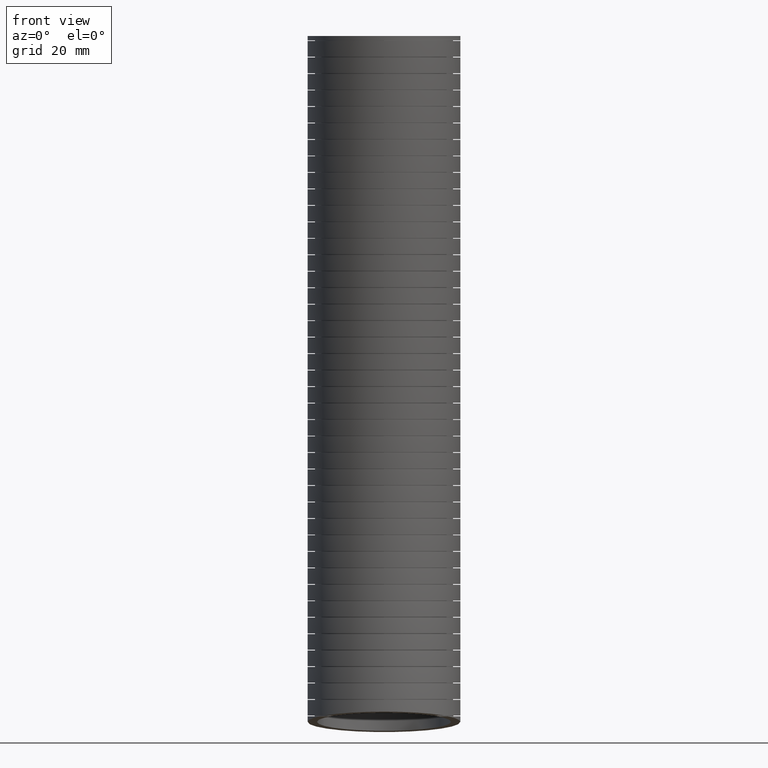
[diagram: clean part render]
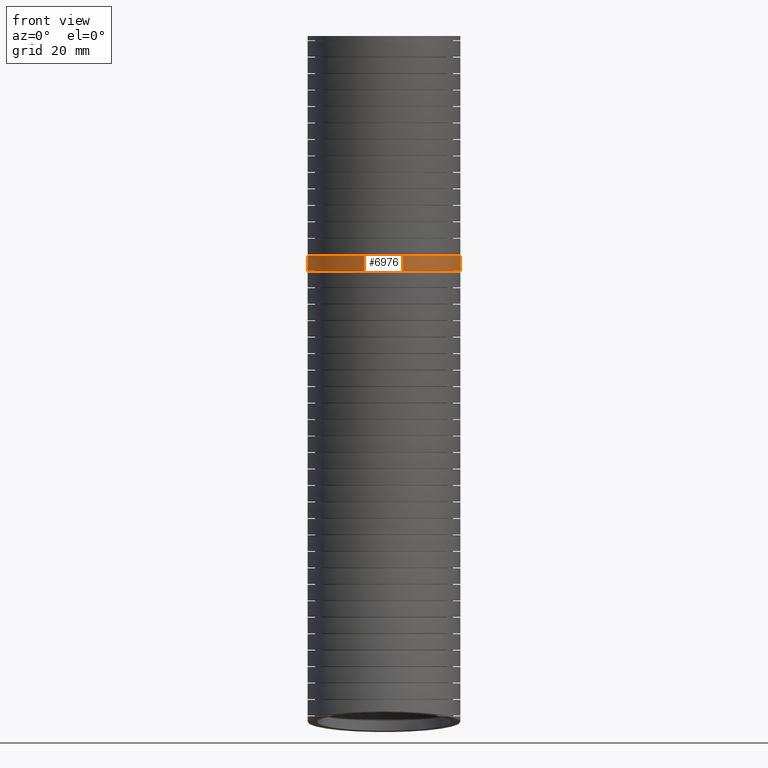
[diagram: same view with one face highlighted and labeled with its STEP entity id]
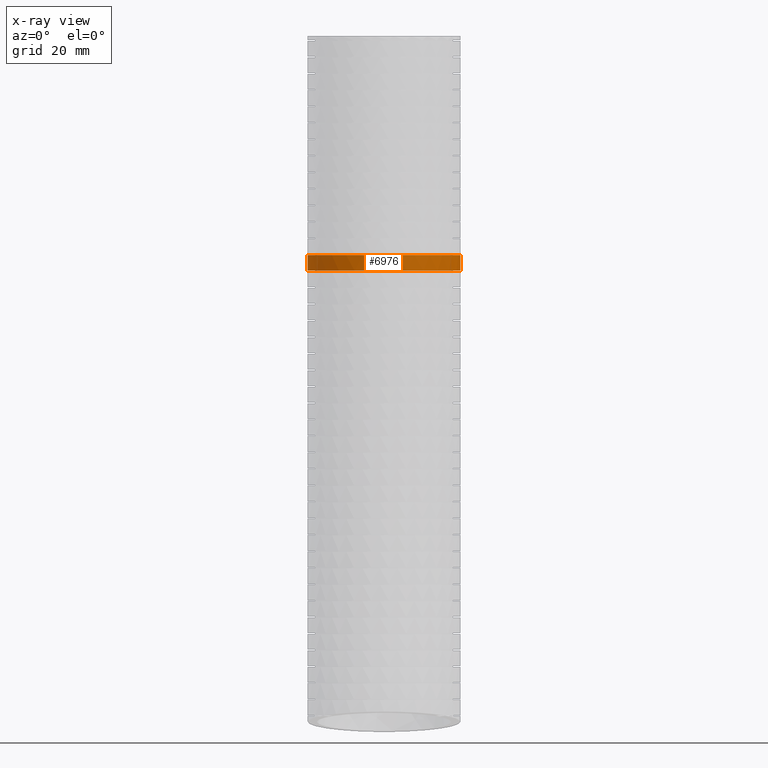
[diagram: x-ray of the same camera — body ghosted, the highlighted face saturated]
A machine part, front view. The second image highlights one B-rep face of the part: STEP entity #6976.
The next image is the same camera in x-ray: the body ghosted, the highlighted face saturated — about 0% of this face is hidden behind the body in this view.
In plain terms, the highlighted face is a freeform B-spline surface patch.
Its self-contained STEP definition (entity closure, byte-faithful):
#6972 = EDGE_CURVE ( 'NONE', #7023, #7018, #18457, .T. ) ;
#6975 = ORIENTED_EDGE ( 'NONE', *, *, #6972, .T. ) ;
#6976 = ADVANCED_FACE ( 'NONE', ( #18481 ), #18516, .T. ) ;
#6978 = EDGE_LOOP ( 'NONE', ( #6975, #7022, #7014, #7011 ) ) ;
#7008 = EDGE_CURVE ( 'NONE', #7021, #7016, #18837, .T. ) ;
#7009 = EDGE_CURVE ( 'NONE', #7023, #7016, #18852, .T. ) ;
#7011 = ORIENTED_EDGE ( 'NONE', *, *, #7009, .F. ) ;
#7014 = ORIENTED_EDGE ( 'NONE', *, *, #7008, .T. ) ;
#7016 = VERTEX_POINT ( 'NONE', #18887 ) ;
#7018 = VERTEX_POINT ( 'NONE', #18886 ) ;
#7020 = EDGE_CURVE ( 'NONE', #7018, #7021, #18884, .T. ) ;
#7021 = VERTEX_POINT ( 'NONE', #18883 ) ;
#7022 = ORIENTED_EDGE ( 'NONE', *, *, #7020, .T. ) ;
#7023 = VERTEX_POINT ( 'NONE', #18952 ) ;
#18424 = CARTESIAN_POINT ( 'NONE',  ( -0.1215402187118136600, -0.9374726244329305600, -3.057660407145619300 ) ) ;
#18425 = CARTESIAN_POINT ( 'NONE',  ( -0.06917328683823963100, -0.9426145128001252000, -3.057660407145618800 ) ) ;
#18426 = CARTESIAN_POINT ( 'NONE',  ( -0.03435415852077784000, -0.9442965165041593600, -3.057660407145620200 ) ) ;
#18427 = CARTESIAN_POINT ( 'NONE',  ( 0.06983493048084372900, -0.9442597822696459100, -3.057660407145620200 ) ) ;
#18428 = CARTESIAN_POINT ( 'NONE',  ( 0.1389391514837237700, -0.9375067263528257300, -3.057660407145623700 ) ) ;
#18429 = CARTESIAN_POINT ( 'NONE',  ( 0.2248633613621606500, -0.9204254354117539200, -3.057660407145622400 ) ) ;
#18430 = CARTESIAN_POINT ( 'NONE',  ( 0.2420621164282275000, -0.9165621818763084500, -3.057660407145620200 ) ) ;
#18431 = CARTESIAN_POINT ( 'NONE',  ( 0.2760565489949506900, -0.9080381195419338100, -3.057660407145620600 ) ) ;
#18432 = CARTESIAN_POINT ( 'NONE',  ( 0.2928877023411077800, -0.9033721813495996200, -3.057660407145619300 ) ) ;
#18433 = CARTESIAN_POINT ( 'NONE',  ( 0.3428917434729867900, -0.8881839763222046900, -3.057660407145620200 ) ) ;
#18434 = CARTESIAN_POINT ( 'NONE',  ( 0.4082609846545256500, -0.8647642642587589600, -3.057660407145615300 ) ) ;
#18435 = CARTESIAN_POINT ( 'NONE',  ( 0.4710597620224740700, -0.8350925346791043800, -3.057660407145620600 ) ) ;
#18436 = CARTESIAN_POINT ( 'NONE',  ( 0.5171801634737271900, -0.8104583366050328600, -3.057660407145620200 ) ) ;
#18437 = CARTESIAN_POINT ( 'NONE',  ( 0.5323902275820994200, -0.8018494997590095400, -3.057660407145617500 ) ) ;
#18438 = CARTESIAN_POINT ( 'NONE',  ( 0.5624774145357253100, -0.7838220287852873900, -3.057660407145617900 ) ) ;
#18439 = CARTESIAN_POINT ( 'NONE',  ( 0.5773643700682495900, -0.7743934740587443700, -3.057660407145622800 ) ) ;
#18440 = CARTESIAN_POINT ( 'NONE',  ( 0.6501404907607752900, -0.7257438975770367200, -3.057660407145623300 ) ) ;
#18441 = CARTESIAN_POINT ( 'NONE',  ( 0.7037688275457415500, -0.6816655099864871200, -3.057660407145621500 ) ) ;
#18442 = CARTESIAN_POINT ( 'NONE',  ( 0.7774834674047630400, -0.6079906580992375800, -3.057660407145620600 ) ) ;
#18443 = CARTESIAN_POINT ( 'NONE',  ( 0.8009256825925272800, -0.5821638197421116200, -3.057660407145620200 ) ) ;
#18444 = CARTESIAN_POINT ( 'NONE',  ( 0.8343404407094902100, -0.5414594360631651600, -3.057660407145620600 ) ) ;
#18445 = CARTESIAN_POINT ( 'NONE',  ( 0.8451681587004317200, -0.5275815469180339400, -3.057660407145622400 ) ) ;
#18446 = CARTESIAN_POINT ( 'NONE',  ( 0.8660033663272986800, -0.4994762338624898500, -3.057660407145622400 ) ) ;
#18447 = CARTESIAN_POINT ( 'NONE',  ( 0.8760408930163867700, -0.4852129433491188000, -3.057660407145620600 ) ) ;
#18448 = CARTESIAN_POINT ( 'NONE',  ( 0.9243580571259492100, -0.4128599000854779000, -3.057660407145620600 ) ) ;
#18449 = CARTESIAN_POINT ( 'NONE',  ( 0.9570797160753671300, -0.3516899852253488300, -3.057660407145620200 ) ) ;
#18450 = CARTESIAN_POINT ( 'NONE',  ( 0.9971838352326708500, -0.2549594130529019300, -3.057660407145619300 ) ) ;
#18451 = CARTESIAN_POINT ( 'NONE',  ( 1.009086723257010700, -0.2217052706119471700, -3.057660407145617900 ) ) ;
#18452 = CARTESIAN_POINT ( 'NONE',  ( 1.029365778342484800, -0.1547959874455602200, -3.057660407145618800 ) ) ;
#18453 = CARTESIAN_POINT ( 'NONE',  ( 1.037798973949914300, -0.1210507470612444500, -3.057660407145620600 ) ) ;
#18454 = CARTESIAN_POINT ( 'NONE',  ( 1.058093820336625500, -0.01896268789573408700, -3.057660407145620200 ) ) ;
#18455 = CARTESIAN_POINT ( 'NONE',  ( 1.065000000000000200, 0.05022407803049355700, -3.057660406953686600 ) ) ;
#18456 = CARTESIAN_POINT ( 'NONE',  ( 1.064999999999999900, 0.1205870087397783500, -3.057660406953686600 ) ) ;
#18457 = B_SPLINE_CURVE_WITH_KNOTS ( 'NONE', 3,
 ( #18456, #18455, #18454, #18453, #18452, #18451, #18450, #18449, #18448, #18447, #18446, #18445, #18444, #18443, #18442, #18441, #18440, #18439, #18438, #18437, #18436, #18435, #18434, #18433, #18432, #18431, #18430, #18429, #18428, #18427, #18426, #18425, #18424, #18509, #18508, #18507, #18506, #18505, #18504, #18503, #18502, #18501, #18500, #18499, #18498, #18497, #18496, #18495, #18494, #18493, #18492, #18491, #18490, #18489, #18488, #18487, #18486, #18485, #18484, #18483, #18482 ),
 .UNSPECIFIED., .F., .F.,
 ( 4, 2, 2, 2, 2, 2, 2, 2, 2, 2, 2, 1, 2, 2, 2, 2, 2, 2, 2, 2, 2, 2, 2, 2, 2, 2, 2, 2, 2, 2, 4 ),
 ( 0.0000000000000000000, 0.005285551659694028000, 0.007928327489541042000, 0.01057110331938805800, 0.01585665497908208400, 0.01717804289400559300, 0.01849943080892910200, 0.02114220663877611600, 0.02642775829847015700, 0.02774914621339367000, 0.02907053412831717800, 0.03171330995816420300, 0.03435608578801122700, 0.03567747370293473900, 0.03699886161785825200, 0.04228441327755231400, 0.04492718910739935300, 0.04624857702232286500, 0.04756996493724638400, 0.05285551659694044700, 0.05417690451186396600, 0.05549829242678748500, 0.05814106825663450900, 0.06342661991632858600, 0.06606939574617562400, 0.06871217157602266300, 0.07135494740586968700, 0.07399772323571672500, 0.07928327489541080200, 0.08192605072525784000, 0.08456882655510487800 ),
 .UNSPECIFIED. ) ;
#18481 = FACE_OUTER_BOUND ( 'NONE', #6978, .T. ) ;
#18482 = CARTESIAN_POINT ( 'NONE',  ( -1.064999999999999900, 0.1205870087512069300, -3.057660407145620600 ) ) ;
#18483 = CARTESIAN_POINT ( 'NONE',  ( -1.064999999999999700, 0.08583504205267954200, -3.057660407145620200 ) ) ;
#18484 = CARTESIAN_POINT ( 'NONE',  ( -1.063303004283072500, 0.05097530494169246600, -3.057660407145619300 ) ) ;
#18485 = CARTESIAN_POINT ( 'NONE',  ( -1.056399718513744800, -0.01896703259938519300, -3.057660407145620200 ) ) ;
#18486 = CARTESIAN_POINT ( 'NONE',  ( -1.051228778704043700, -0.05361499832369976500, -3.057660407145619300 ) ) ;
#18487 = CARTESIAN_POINT ( 'NONE',  ( -1.030812056628519000, -0.1559539742178250300, -3.057660407145620200 ) ) ;
#18488 = CARTESIAN_POINT ( 'NONE',  ( -1.010680195581934400, -0.2223474207832785700, -3.057660407145620600 ) ) ;
#18489 = CARTESIAN_POINT ( 'NONE',  ( -0.9705807678972291400, -0.3191549013526563400, -3.057660407145620600 ) ) ;
#18490 = CARTESIAN_POINT ( 'NONE',  ( -0.9554676513522293300, -0.3510855149635955800, -3.057660407145619300 ) ) ;
#18491 = CARTESIAN_POINT ( 'NONE',  ( -0.9224977857982282800, -0.4126826399353060700, -3.057660407145620200 ) ) ;
#18492 = CARTESIAN_POINT ( 'NONE',  ( -0.9045985159531749800, -0.4424898023337882100, -3.057660407145620600 ) ) ;
#18493 = CARTESIAN_POINT ( 'NONE',  ( -0.8660299016407351200, -0.5001624031353689700, -3.057660407145619300 ) ) ;
#18494 = CARTESIAN_POINT ( 'NONE',  ( -0.8453604700035495200, -0.5280277804355294500, -3.057660407145619300 ) ) ;
#18495 = CARTESIAN_POINT ( 'NONE',  ( -0.8012294302326010700, -0.5818013184110526500, -3.057660407145620200 ) ) ;
#18496 = CARTESIAN_POINT ( 'NONE',  ( -0.7777241135510245500, -0.6077534115116047800, -3.057660407145620600 ) ) ;
#18497 = CARTESIAN_POINT ( 'NONE',  ( -0.7031387033075687800, -0.6822887449775418800, -3.057660407145620200 ) ) ;
#18498 = CARTESIAN_POINT ( 'NONE',  ( -0.6493451659009589200, -0.7263022880075299400, -3.057660407145620200 ) ) ;
#18499 = CARTESIAN_POINT ( 'NONE',  ( -0.5627804723503296900, -0.7841290933918537700, -3.057660407145619300 ) ) ;
#18500 = CARTESIAN_POINT ( 'NONE',  ( -0.5329392847023259900, -0.8020290326899266500, -3.057660407145620600 ) ) ;
#18501 = CARTESIAN_POINT ( 'NONE',  ( -0.4866618337560681400, -0.8267649081574339800, -3.057660407145620200 ) ) ;
#18502 = CARTESIAN_POINT ( 'NONE',  ( -0.4709415455160900800, -0.8346763243540814600, -3.057660407145621000 ) ) ;
#18503 = CARTESIAN_POINT ( 'NONE',  ( -0.4391948199466720900, -0.8496782998201137800, -3.057660407145620600 ) ) ;
#18504 = CARTESIAN_POINT ( 'NONE',  ( -0.4231981296693434500, -0.8567577542723511200, -3.057660407145621000 ) ) ;
#18505 = CARTESIAN_POINT ( 'NONE',  ( -0.3426100548971274300, -0.8900884242379437600, -3.057660407145620200 ) ) ;
#18506 = CARTESIAN_POINT ( 'NONE',  ( -0.2762220100876897100, -0.9101986560926484900, -3.057660407145618800 ) ) ;
#18507 = CARTESIAN_POINT ( 'NONE',  ( -0.1908537258418880300, -0.9271905735269474500, -3.057660407145618800 ) ) ;
#18508 = CARTESIAN_POINT ( 'NONE',  ( -0.1736598359582810800, -0.9301780005888317100, -3.057660407145620200 ) ) ;
#18509 = CARTESIAN_POINT ( 'NONE',  ( -0.1390275423170604700, -0.9353171064676831800, -3.057660407145620200 ) ) ;
#18516 =( BOUNDED_SURFACE ( )  B_SPLINE_SURFACE ( 3, 3, ( 
 ( #18566, #18565, #18564, #18562, #18560, #18559 ),
 ( #18558, #18557, #18556, #18555, #18554, #18553 ),
 ( #18552, #18551, #18550, #18549, #18548, #18547 ),
 ( #18546, #18545, #18544, #18543, #18542, #18541 ),
 ( #18539, #18538, #18537, #18536, #18535, #18534 ),
 ( #18533, #18532, #18531, #18530, #18529, #18528 ),
 ( #18527, #18526, #18525, #18524, #18523, #18522 ) ),
 .UNSPECIFIED., .F., .F., .F. ) 
 B_SPLINE_SURFACE_WITH_KNOTS ( ( 4, 3, 4 ),
 ( 4, 1, 1, 4 ),
 ( 0.0000000000000000000, 0.5000000000000000000, 1.000000000000000000 ),
 ( 0.0000000000000000000, 0.5600000000000001600, 0.9402239691641354200, 1.000000000000000000 ),
 .UNSPECIFIED. ) 
 GEOMETRIC_REPRESENTATION_ITEM ( )  RATIONAL_B_SPLINE_SURFACE ( (
 ( 1.000000000000000000, 1.000000000000000000, 1.000000000000000200, 1.000000000000000200, 1.000000000000000200, 1.000000000000000200),
 ( 0.3333333333333333100, 0.3333333333333333100, 0.3333333333333332600, 0.3333333333333334300, 0.3333333333333333700, 0.3333333333333333700),
 ( 0.3333333333333333100, 0.3333333333333333100, 0.3333333333333332600, 0.3333333333333334300, 0.3333333333333333700, 0.3333333333333333700),
 ( 1.000000000000000000, 1.000000000000000000, 1.000000000000000200, 1.000000000000000200, 1.000000000000000200, 1.000000000000000200),
 ( 0.3333333333333333100, 0.3333333333333333100, 0.3333333333333332600, 0.3333333333333334300, 0.3333333333333333700, 0.3333333333333333700),
 ( 0.3333333333333333100, 0.3333333333333333100, 0.3333333333333332600, 0.3333333333333334300, 0.3333333333333333700, 0.3333333333333333700),
 ( 1.000000000000000000, 1.000000000000000000, 1.000000000000000200, 1.000000000000000200, 1.000000000000000200, 1.000000000000000200) ) ) 
 REPRESENTATION_ITEM ( '' )  SURFACE ( )  );
#18522 = CARTESIAN_POINT ( 'NONE',  ( 1.064999999999999700, -0.02999999999999993000, -9.569999999999996700 ) ) ;
#18523 = CARTESIAN_POINT ( 'NONE',  ( 1.064999999999999700, -0.01282253193203170200, -9.380021792021830500 ) ) ;
#18524 = CARTESIAN_POINT ( 'NONE',  ( 1.064999999999999700, 0.1136175452062334300, -7.981628316551387500 ) ) ;
#18525 = CARTESIAN_POINT ( 'NONE',  ( 1.064999999999999500, 0.2122813731536103700, -4.795410929656176400 ) ) ;
#18526 = CARTESIAN_POINT ( 'NONE',  ( 1.064999999999999900, 0.07923988111738790300, -1.790019474294677300 ) ) ;
#18527 = CARTESIAN_POINT ( 'NONE',  ( 1.064999999999999900, 0.0000000000000000000, 0.0000000000000000000 ) ) ;
#18528 = CARTESIAN_POINT ( 'NONE',  ( 1.064999999999999700, 2.080788144512650400, -9.855435472541238100 ) ) ;
#18529 = CARTESIAN_POINT ( 'NONE',  ( 1.064999999999999700, 2.098892687478189700, -9.655694098161024600 ) ) ;
#18530 = CARTESIAN_POINT ( 'NONE',  ( 1.064999999999999700, 2.232156786707371500, -8.185435810711052100 ) ) ;
#18531 = CARTESIAN_POINT ( 'NONE',  ( 1.064999999999999900, 2.345283078702082900, -4.843727318243294300 ) ) ;
#18532 = CARTESIAN_POINT ( 'NONE',  ( 1.065000000000000200, 2.210360350555081500, -1.808054899781085700 ) ) ;
#18533 = CARTESIAN_POINT ( 'NONE',  ( 1.064999999999999900, 2.129999999999999900, 0.0000000000000000000 ) ) ;
#18534 = CARTESIAN_POINT ( 'NONE',  ( -1.064999999999999700, 2.080788144512650400, -9.855435472541238100 ) ) ;
#18535 = CARTESIAN_POINT ( 'NONE',  ( -1.064999999999999700, 2.098892687478189700, -9.655694098161024600 ) ) ;
#18536 = CARTESIAN_POINT ( 'NONE',  ( -1.064999999999999500, 2.232156786707371500, -8.185435810711052100 ) ) ;
#18537 = CARTESIAN_POINT ( 'NONE',  ( -1.064999999999999500, 2.345283078702082900, -4.843727318243294300 ) ) ;
#18538 = CARTESIAN_POINT ( 'NONE',  ( -1.064999999999999900, 2.210360350555081500, -1.808054899781085700 ) ) ;
#18539 = CARTESIAN_POINT ( 'NONE',  ( -1.064999999999999900, 2.129999999999999900, 0.0000000000000000000 ) ) ;
#18541 = CARTESIAN_POINT ( 'NONE',  ( -1.064999999999999700, -0.02999999999999980100, -9.569999999999996700 ) ) ;
#18542 = CARTESIAN_POINT ( 'NONE',  ( -1.064999999999999700, -0.01282253193203157000, -9.380021792021830500 ) ) ;
#18543 = CARTESIAN_POINT ( 'NONE',  ( -1.064999999999999700, 0.1136175452062335600, -7.981628316551387500 ) ) ;
#18544 = CARTESIAN_POINT ( 'NONE',  ( -1.064999999999999500, 0.2122813731536105100, -4.795410929656176400 ) ) ;
#18545 = CARTESIAN_POINT ( 'NONE',  ( -1.064999999999999900, 0.07923988111738802800, -1.790019474294677300 ) ) ;
#18546 = CARTESIAN_POINT ( 'NONE',  ( -1.064999999999999900, 1.304248841091931100E-016, 0.0000000000000000000 ) ) ;
#18547 = CARTESIAN_POINT ( 'NONE',  ( -1.064999999999999900, -2.140788144512650400, -9.284564527458751800 ) ) ;
#18548 = CARTESIAN_POINT ( 'NONE',  ( -1.064999999999999900, -2.124537751342253000, -9.104349485882636400 ) ) ;
#18549 = CARTESIAN_POINT ( 'NONE',  ( -1.064999999999999700, -2.004921696294905200, -7.777820822391721100 ) ) ;
#18550 = CARTESIAN_POINT ( 'NONE',  ( -1.065000000000000400, -1.920720332394860500, -4.747094541069063900 ) ) ;
#18551 = CARTESIAN_POINT ( 'NONE',  ( -1.065000000000000200, -2.051880588320306000, -1.771984048808268300 ) ) ;
#18552 = CARTESIAN_POINT ( 'NONE',  ( -1.065000000000000200, -2.129999999999999900, 0.0000000000000000000 ) ) ;
#18553 = CARTESIAN_POINT ( 'NONE',  ( 1.064999999999999700, -2.140788144512650400, -9.284564527458751800 ) ) ;
#18554 = CARTESIAN_POINT ( 'NONE',  ( 1.064999999999999700, -2.124537751342253000, -9.104349485882636400 ) ) ;
#18555 = CARTESIAN_POINT ( 'NONE',  ( 1.064999999999999700, -2.004921696294905200, -7.777820822391721100 ) ) ;
#18556 = CARTESIAN_POINT ( 'NONE',  ( 1.064999999999999900, -1.920720332394860500, -4.747094541069063900 ) ) ;
#18557 = CARTESIAN_POINT ( 'NONE',  ( 1.065000000000000200, -2.051880588320306000, -1.771984048808268300 ) ) ;
#18558 = CARTESIAN_POINT ( 'NONE',  ( 1.064999999999999900, -2.129999999999999900, 0.0000000000000000000 ) ) ;
#18559 = CARTESIAN_POINT ( 'NONE',  ( 1.064999999999999700, -0.02999999999999993000, -9.569999999999996700 ) ) ;
#18560 = CARTESIAN_POINT ( 'NONE',  ( 1.064999999999999700, -0.01282253193203170200, -9.380021792021830500 ) ) ;
#18562 = CARTESIAN_POINT ( 'NONE',  ( 1.064999999999999700, 0.1136175452062334300, -7.981628316551387500 ) ) ;
#18564 = CARTESIAN_POINT ( 'NONE',  ( 1.064999999999999500, 0.2122813731536103700, -4.795410929656176400 ) ) ;
#18565 = CARTESIAN_POINT ( 'NONE',  ( 1.064999999999999900, 0.07923988111738790300, -1.790019474294677300 ) ) ;
#18566 = CARTESIAN_POINT ( 'NONE',  ( 1.064999999999999900, 0.0000000000000000000, 0.0000000000000000000 ) ) ;
#18801 = CARTESIAN_POINT ( 'NONE',  ( 0.06917857548967511200, -0.9358035227247133400, -3.277565665748029700 ) ) ;
#18802 = CARTESIAN_POINT ( 'NONE',  ( 0.03424823685632795400, -0.9375013235565109500, -3.277565665748030500 ) ) ;
#18803 = CARTESIAN_POINT ( 'NONE',  ( 0.01666081666670880500, -0.9379227842465834900, -3.277565665748029700 ) ) ;
#18804 = CARTESIAN_POINT ( 'NONE',  ( -0.07110442309207028200, -0.9378492705363767900, -3.277565665748029700 ) ) ;
#18805 = CARTESIAN_POINT ( 'NONE',  ( -0.1402212141806072600, -0.9309169848207301500, -3.277565665748028300 ) ) ;
#18806 = CARTESIAN_POINT ( 'NONE',  ( -0.2423097300363572500, -0.9105624357749931800, -3.277565665748030500 ) ) ;
#18807 = CARTESIAN_POINT ( 'NONE',  ( -0.2760728553039241700, -0.9021060915487820700, -3.277565665748031900 ) ) ;
#18808 = CARTESIAN_POINT ( 'NONE',  ( -0.3263074692768969700, -0.8868484229887768600, -3.277565665748031900 ) ) ;
#18809 = CARTESIAN_POINT ( 'NONE',  ( -0.3430299217570497200, -0.8813153976108520900, -3.277565665748029700 ) ) ;
#18810 = CARTESIAN_POINT ( 'NONE',  ( -0.3760442824744302200, -0.8694770557567500500, -3.277565665748030100 ) ) ;
#18811 = CARTESIAN_POINT ( 'NONE',  ( -0.3923433675921866300, -0.8631727250312887200, -3.277565665748030500 ) ) ;
#18812 = CARTESIAN_POINT ( 'NONE',  ( -0.4728176524894577300, -0.8297610601710205800, -3.277565665748028300 ) ) ;
#18813 = CARTESIAN_POINT ( 'NONE',  ( -0.5339584866542631500, -0.7970374724245490300, -3.277565665748031900 ) ) ;
#18814 = CARTESIAN_POINT ( 'NONE',  ( -0.6063454391027737200, -0.7486571070708735200, -3.277565665748032300 ) ) ;
#18815 = CARTESIAN_POINT ( 'NONE',  ( -0.6206190617105676900, -0.7386038836339631200, -3.277565665748031400 ) ) ;
#18816 = CARTESIAN_POINT ( 'NONE',  ( -0.6487515413028807100, -0.7177297544088666600, -3.277565665748031900 ) ) ;
#18817 = CARTESIAN_POINT ( 'NONE',  ( -0.6626400885038273800, -0.7068822784805288700, -3.277565665748032800 ) ) ;
#18818 = CARTESIAN_POINT ( 'NONE',  ( -0.7032507963059015900, -0.6735148300894533400, -3.277565665748033700 ) ) ;
#18819 = CARTESIAN_POINT ( 'NONE',  ( -0.7290350225950058500, -0.6500967690820576000, -3.277565665748030500 ) ) ;
#18820 = CARTESIAN_POINT ( 'NONE',  ( -0.8026267812526732800, -0.5764213776282800500, -3.277565665748029700 ) ) ;
#18821 = CARTESIAN_POINT ( 'NONE',  ( -0.8467094675720520100, -0.5227756544483422900, -3.277565665748029700 ) ) ;
#18822 = CARTESIAN_POINT ( 'NONE',  ( -0.8953978239722594200, -0.4498829453449622600, -3.277565665748029200 ) ) ;
#18823 = CARTESIAN_POINT ( 'NONE',  ( -0.9048177924633897800, -0.4349947383613099200, -3.277565665748029700 ) ) ;
#18824 = CARTESIAN_POINT ( 'NONE',  ( -0.9228005250366656500, -0.4049569554798835300, -3.277565665748029700 ) ) ;
#18825 = CARTESIAN_POINT ( 'NONE',  ( -0.9313908458210513600, -0.3897681258970419600, -3.277565665748029200 ) ) ;
#18826 = CARTESIAN_POINT ( 'NONE',  ( -0.9559788103309959700, -0.3437003562352857800, -3.277565665748030500 ) ) ;
#18827 = CARTESIAN_POINT ( 'NONE',  ( -0.9707962420770817100, -0.3123213157189320100, -3.277565665748030500 ) ) ;
#18828 = CARTESIAN_POINT ( 'NONE',  ( -0.9973192086306665900, -0.2482446062980074600, -3.277565665748030500 ) ) ;
#18829 = CARTESIAN_POINT ( 'NONE',  ( -1.009024780974813200, -0.2155469532991328700, -3.277565665748029700 ) ) ;
#18830 = CARTESIAN_POINT ( 'NONE',  ( -1.024209518258739600, -0.1654946807422619200, -3.277565665748029700 ) ) ;
#18831 = CARTESIAN_POINT ( 'NONE',  ( -1.028874790642115600, -0.1486426597527508400, -3.277565665748032800 ) ) ;
#18832 = CARTESIAN_POINT ( 'NONE',  ( -1.037397133156598800, -0.1145961519227373500, -3.277565665748032300 ) ) ;
#18833 = CARTESIAN_POINT ( 'NONE',  ( -1.041246067301763400, -0.09742240527836282200, -3.277565665748031900 ) ) ;
#18834 = CARTESIAN_POINT ( 'NONE',  ( -1.058262570132329800, -0.01164548723445316100, -3.277565665748032800 ) ) ;
#18835 = CARTESIAN_POINT ( 'NONE',  ( -1.064999999999999900, 0.05741277135999764400, -3.277565665748033700 ) ) ;
#18836 = CARTESIAN_POINT ( 'NONE',  ( -1.064999999999999700, 0.1268989670973844900, -3.277565665748030500 ) ) ;
#18837 = B_SPLINE_CURVE_WITH_KNOTS ( 'NONE', 3,
 ( #18836, #18835, #18834, #18833, #18832, #18831, #18830, #18829, #18828, #18827, #18826, #18825, #18824, #18823, #18822, #18821, #18820, #18819, #18818, #18817, #18816, #18815, #18814, #18813, #18812, #18811, #18810, #18809, #18808, #18807, #18806, #18805, #18804, #18803, #18802, #18801, #18881, #18880, #18879, #18878, #18877, #18876, #18875, #18874, #18873, #18872, #18871, #18870, #18869, #18868, #18867, #18865, #18864, #18863, #18862, #18861, #18860, #18859, #18858, #18857, #18856, #18855 ),
 .UNSPECIFIED., .F., .F.,
 ( 4, 2, 2, 2, 2, 2, 2, 2, 2, 2, 2, 2, 2, 2, 2, 2, 2, 2, 2, 2, 2, 2, 2, 2, 2, 2, 2, 2, 2, 2, 4 ),
 ( 0.08456691254267473300, 0.08985111486017557900, 0.09117216543955078400, 0.09249321601892598900, 0.09513531717767642600, 0.09777741833642683600, 0.09909846891580205400, 0.1004195194951772600, 0.1057037218126781200, 0.1083458229714285400, 0.1096668735508037600, 0.1109879241301789700, 0.1162721264476798300, 0.1175931770270550500, 0.1189142276064302800, 0.1215563287651807000, 0.1268405310826815600, 0.1281615816620567700, 0.1294826322414319700, 0.1321247334001824100, 0.1347668345589328500, 0.1374089357176832600, 0.1426931380351841300, 0.1453352391939345400, 0.1479773403526849500, 0.1532615426701858200, 0.1559036438289362300, 0.1585457449876866400, 0.1611878461464370500, 0.1638299473051874900, 0.1691141496226883400 ),
 .UNSPECIFIED. ) ;
#18844 = CARTESIAN_POINT ( 'NONE',  ( 1.064999999999999500, 0.1268989670867864400, -3.277565665556103200 ) ) ;
#18845 = CARTESIAN_POINT ( 'NONE',  ( 1.064999999999999900, 0.1248752579239350000, -3.204267337496994100 ) ) ;
#18846 = CARTESIAN_POINT ( 'NONE',  ( 1.064999999999999900, 0.1227694345637317900, -3.130965506248217800 ) ) ;
#18847 = CARTESIAN_POINT ( 'NONE',  ( 1.064999999999999900, 0.1205870087397783500, -3.057660406953686600 ) ) ;
#18852 = B_SPLINE_CURVE_WITH_KNOTS ( 'NONE', 3,
 ( #18847, #18846, #18845, #18844 ),
 .UNSPECIFIED., .F., .F.,
 ( 4, 4 ),
 ( 0.3189245236271563400, 0.3418719223174577800 ),
 .UNSPECIFIED. ) ;
#18855 = CARTESIAN_POINT ( 'NONE',  ( 1.064999999999999500, 0.1268989670867864400, -3.277565665556103200 ) ) ;
#18856 = CARTESIAN_POINT ( 'NONE',  ( 1.064999999999999500, 0.05655395732353360500, -3.277565665556101800 ) ) ;
#18857 = CARTESIAN_POINT ( 'NONE',  ( 1.058095713432178000, -0.01306154398372920200, -3.277565665748030100 ) ) ;
#18858 = CARTESIAN_POINT ( 'NONE',  ( 1.037423156726366500, -0.1163948141531810500, -3.277565665748030100 ) ) ;
#18859 = CARTESIAN_POINT ( 'NONE',  ( 1.028839379868472700, -0.1504070803004364500, -3.277565665748035400 ) ) ;
#18860 = CARTESIAN_POINT ( 'NONE',  ( 1.008538866222774600, -0.2169671411067544400, -3.277565665748035000 ) ) ;
#18861 = CARTESIAN_POINT ( 'NONE',  ( 0.9968025332520025200, -0.2496150512885642600, -3.277565665748031900 ) ) ;
#18862 = CARTESIAN_POINT ( 'NONE',  ( 0.9701896251492487800, -0.3136593487838580400, -3.277565665748031900 ) ) ;
#18863 = CARTESIAN_POINT ( 'NONE',  ( 0.9553131147587163900, -0.3450557618996201700, -3.277565665748030100 ) ) ;
#18864 = CARTESIAN_POINT ( 'NONE',  ( 0.9223607960924485900, -0.4065735289922740000, -3.277565665748031400 ) ) ;
#18865 = CARTESIAN_POINT ( 'NONE',  ( 0.9041750583005773200, -0.4368402295868542600, -3.277565665748031400 ) ) ;
#18867 = CARTESIAN_POINT ( 'NONE',  ( 0.8457969692224750500, -0.5239386080035382000, -3.277565665748030500 ) ) ;
#18868 = CARTESIAN_POINT ( 'NONE',  ( 0.8016967234250739200, -0.5774900075539621800, -3.277565665748031400 ) ) ;
#18869 = CARTESIAN_POINT ( 'NONE',  ( 0.7279034886134051500, -0.6511585739822289800, -3.277565665748031900 ) ) ;
#18870 = CARTESIAN_POINT ( 'NONE',  ( 0.7020229355264955300, -0.6745971689287544300, -3.277565665748032800 ) ) ;
#18871 = CARTESIAN_POINT ( 'NONE',  ( 0.6476042742587651000, -0.7191590732009628400, -3.277565665748031900 ) ) ;
#18872 = CARTESIAN_POINT ( 'NONE',  ( 0.6195101236540561100, -0.7399177341167187900, -3.277565665748030100 ) ) ;
#18873 = CARTESIAN_POINT ( 'NONE',  ( 0.5327259495895857500, -0.7977385123780722500, -3.277565665748030100 ) ) ;
#18874 = CARTESIAN_POINT ( 'NONE',  ( 0.4715307689571905900, -0.8304089621525845300, -3.277565665748029700 ) ) ;
#18875 = CARTESIAN_POINT ( 'NONE',  ( 0.3746500678029789900, -0.8704599069952833100, -3.277565665748029700 ) ) ;
#18876 = CARTESIAN_POINT ( 'NONE',  ( 0.3413895226411471900, -0.8823228460884139400, -3.277565665748029200 ) ) ;
#18877 = CARTESIAN_POINT ( 'NONE',  ( 0.2745713460211715000, -0.9025041928642805200, -3.277565665748030100 ) ) ;
#18878 = CARTESIAN_POINT ( 'NONE',  ( 0.2408551008033533700, -0.9109002544302355900, -3.277565665748032300 ) ) ;
#18879 = CARTESIAN_POINT ( 'NONE',  ( 0.1728199662924839500, -0.9243675369080586200, -3.277565665748032300 ) ) ;
#18880 = CARTESIAN_POINT ( 'NONE',  ( 0.1385010631020398600, -0.9294386811467767500, -3.277565665748032800 ) ) ;
#18881 = CARTESIAN_POINT ( 'NONE',  ( 0.08656634376756432200, -0.9345275939333662600, -3.277565665748032300 ) ) ;
#18883 = CARTESIAN_POINT ( 'NONE',  ( -1.064999999999999700, 0.1268989670973844900, -3.277565665748030500 ) ) ;
#18884 = B_SPLINE_CURVE_WITH_KNOTS ( 'NONE', 3,
 ( #18949, #18948, #18947, #18946 ),
 .UNSPECIFIED., .F., .F.,
 ( 4, 4 ),
 ( 0.3189245236472016400, 0.3418719223375019100 ),
 .UNSPECIFIED. ) ;
#18886 = CARTESIAN_POINT ( 'NONE',  ( -1.064999999999999900, 0.1205870087512069300, -3.057660407145620600 ) ) ;
#18887 = CARTESIAN_POINT ( 'NONE',  ( 1.064999999999999500, 0.1268989670867864400, -3.277565665556103200 ) ) ;
#18946 = CARTESIAN_POINT ( 'NONE',  ( -1.064999999999999700, 0.1268989670973844900, -3.277565665748030500 ) ) ;
#18947 = CARTESIAN_POINT ( 'NONE',  ( -1.064999999999999900, 0.1248752579293816900, -3.204267337689079100 ) ) ;
#18948 = CARTESIAN_POINT ( 'NONE',  ( -1.064999999999999900, 0.1227694345693172600, -3.130965506440312100 ) ) ;
#18949 = CARTESIAN_POINT ( 'NONE',  ( -1.064999999999999900, 0.1205870087512069300, -3.057660407145620600 ) ) ;
#18952 = CARTESIAN_POINT ( 'NONE',  ( 1.064999999999999900, 0.1205870087397783500, -3.057660406953686600 ) ) ;